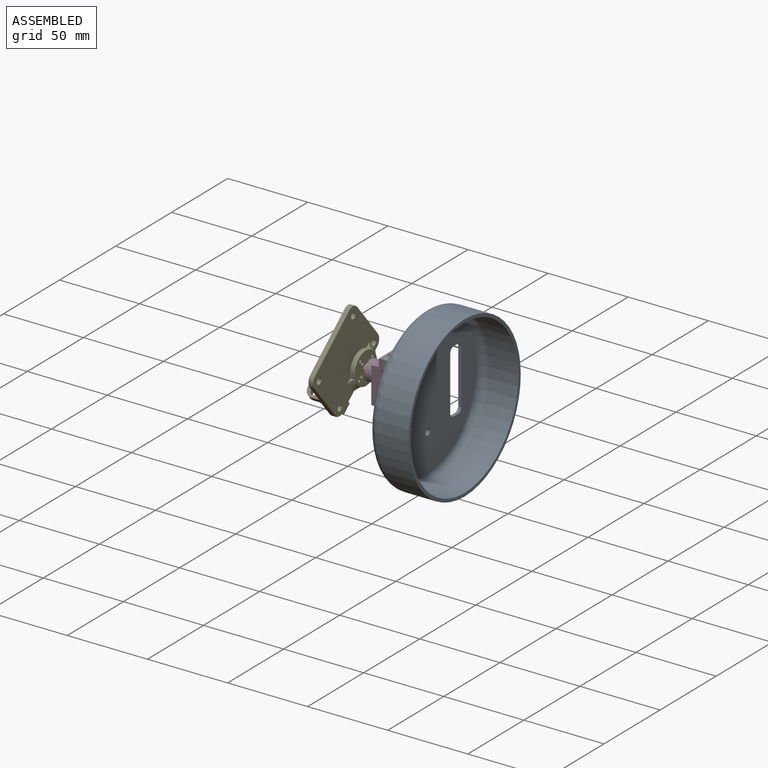
[diagram: assembled view]
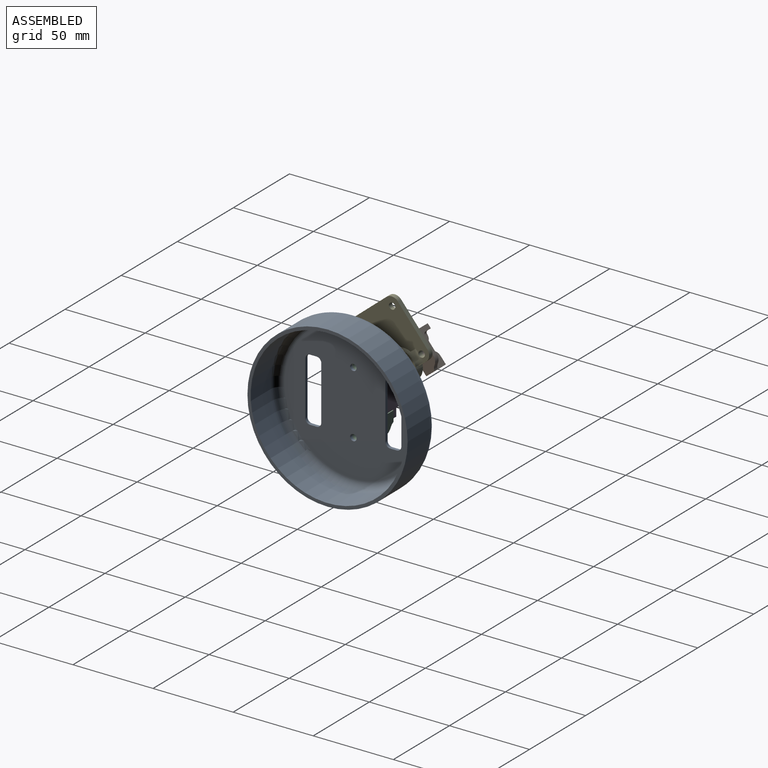
[diagram: assembled view, second angle]
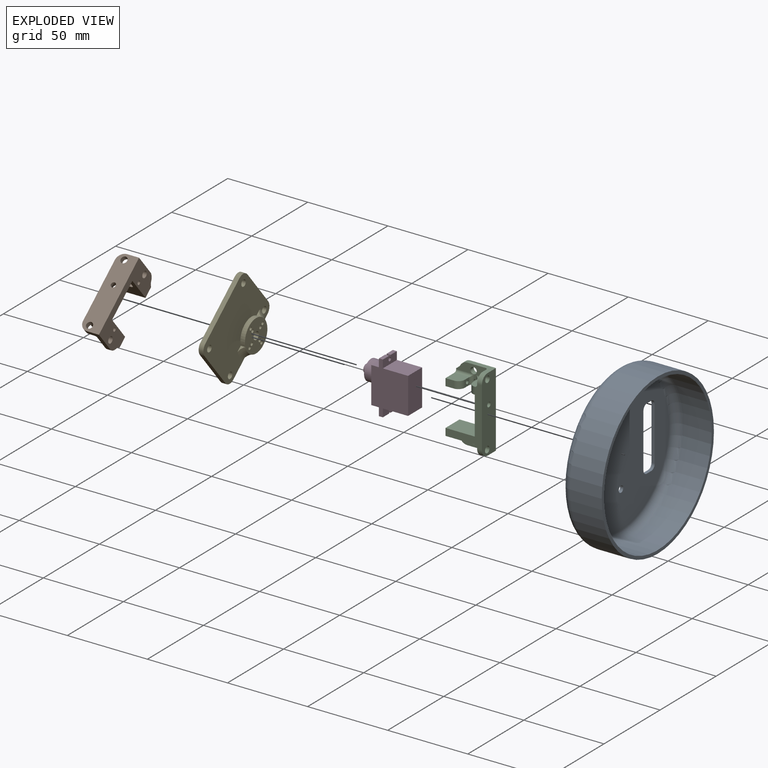
[diagram: exploded view]
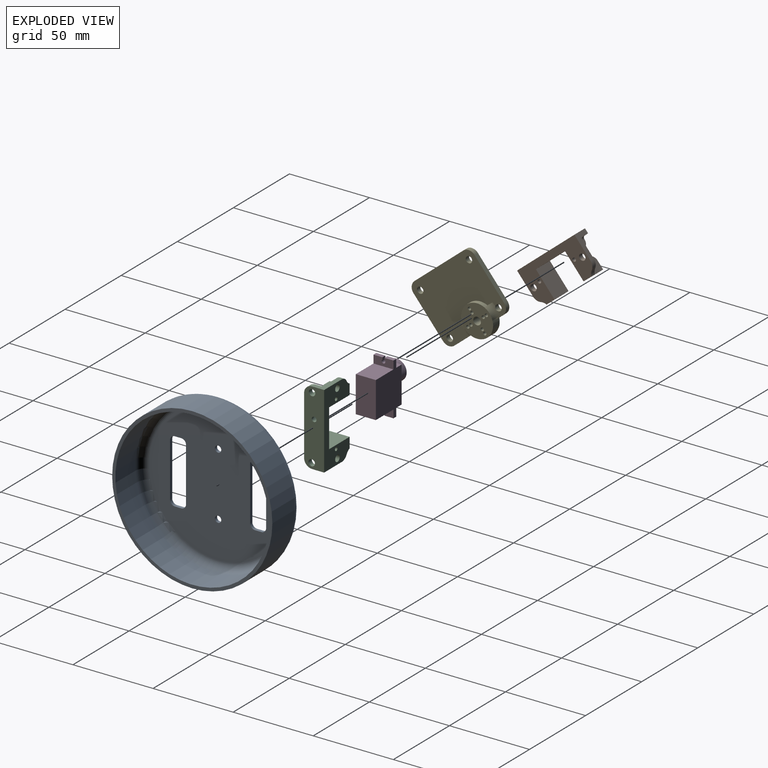
[diagram: exploded view, second angle]
ASSEMBLY  parts=5 mates=5
PART A: 25 faces, bbox 108.2x25x108.2 mm
  f0: plane 90x90mm, normal (0,1,0), area 5560mm2, adj f2,f4,f8,f9,f10,f11,f12,f13
  f1: plane 86x86mm, normal (0,-1,0), area 5007.1mm2, adj f2,f4,f7,f8,f9,f10,f11,f12
  f2: cylinder r=2mm len=4mm, axis (0,1,0), area 25.1mm2, adj f0,f1
  f3: cylinder r=50mm len=100mm, axis (0,1,0), area 6283.2mm2, adj f5,f20
  f4: cylinder r=2mm len=4mm, axis (0,1,0), area 25.1mm2, adj f0,f1
  f5: plane 100x100mm, normal (0,-1,0), area 615.8mm2, adj f3,f6
  f6: cylinder r=48mm len=96mm, axis (0,1,0), area 5428.7mm2, adj f5,f7
  f7: torus R=43mm, axis (0,-1,0), area 2279mm2, adj f1,f6
  f8: plane 33.6x2mm, normal (0,0,-1), area 67.2mm2, adj f0,f1,f21,f24
  f9: plane 4x2mm, normal (1,0,0), area 8mm2, adj f0,f1,f21,f22
  f10: plane 33.6x2mm, normal (0,0,1), area 67.2mm2, adj f0,f1,f22,f23
  f11: plane 4x2mm, normal (-1,0,0), area 8mm2, adj f0,f1,f23,f24
  f12: plane 4x2mm, normal (1,0,0), area 8mm2, adj f0,f1,f16,f19
  f13: plane 33.6x2mm, normal (0,0,1), area 67.2mm2, adj f0,f1,f18,f19
  f14: plane 4x2mm, normal (-1,0,0), area 8mm2, adj f0,f1,f17,f18
  f15: plane 33.6x2mm, normal (0,0,-1), area 67.2mm2, adj f0,f1,f16,f17
  f16: cylinder r=3mm len=3mm, axis (0,1,0), area 9.4mm2, adj f0,f1,f12,f15
  f17: cylinder r=3mm len=3mm, axis (0,-1,0), area 9.4mm2, adj f0,f1,f14,f15
  f18: cylinder r=3mm len=3mm, axis (0,1,0), area 9.4mm2, adj f0,f1,f13,f14
  f19: cylinder r=3mm len=3mm, axis (0,-1,0), area 9.4mm2, adj f0,f1,f12,f13
  f20: torus R=45mm, axis (0,-1,0), area 2377.7mm2, adj f0,f3
  f21: cylinder r=3mm len=3mm, axis (0,-1,0), area 9.4mm2, adj f0,f1,f8,f9
  f22: cylinder r=3mm len=3mm, axis (0,1,0), area 9.4mm2, adj f0,f1,f9,f10
  f23: cylinder r=3mm len=3mm, axis (0,-1,0), area 9.4mm2, adj f0,f1,f10,f11
  f24: cylinder r=3mm len=3mm, axis (0,1,0), area 9.4mm2, adj f0,f1,f8,f11
PART B: 57 faces, bbox 46.6x12.5x22.7 mm
  f0: plane 1.49x1mm, normal (0,1,0), area 1.3mm2, adj f11,f21,f34,f35
  f1: plane 8x4.06mm, normal (-1,0,0), area 28.6mm2, adj f29,f30,f32,f39,f41
  f2: plane 36.6x22.74mm, normal (0,1,0), area 241.7mm2, adj f7,f8,f9,f10,f14,f17,f30,f39
  f3: cylinder r=1.12mm len=11.99mm, axis (0,0,1), area 79.7mm2, adj f22,f53
  f4: cylinder r=1.12mm len=9.24mm, axis (0,0,1), area 65.3mm2, adj f28,f54
  f5: plane 9.3x8mm, normal (-1,0,0), area 70.5mm2, adj f6,f28,f31,f37,f42,f54
  f6: plane 5.24x4.5mm, normal (0,1,0), area 23.6mm2, adj f5,f11,f31,f54
  f7: plane 46.6x12.5mm, normal (0,0,-1), area 539.6mm2, adj f2,f12,f15,f18,f19,f20,f47,f49
  f8: plane 18.24x8mm, normal (1,0,0), area 145.9mm2, adj f2,f43,f44,f53
  f9: plane 18.24x12.5mm, normal (-1,0,0), area 228mm2, adj f2,f10,f12,f53
  f10: plane 23.6x12.5mm, normal (0,0,1), area 275.4mm2, adj f2,f9,f11,f12,f52
  f11: plane 18.24x12.5mm, normal (1,0,0), area 175.3mm2, adj f0,f6,f10,f12,f28,f29,f30,f31
  f12: plane 46.6x22.74mm, normal (0,-1,0), area 568.1mm2, adj f7,f9,f10,f11,f15,f18,f21,f22
  f13: plane 18.24x5.5mm, normal (0,1,0), area 73.8mm2, adj f15,f27,f43,f46,f50,f53,f55
  f14: plane 8x5.5mm, normal (0,0,1), area 26.1mm2, adj f2,f15,f20,f44,f46,f49
  f15: plane 15.74x7.5mm, normal (1,0,0), area 61.2mm2, adj f7,f12,f13,f14,f46,f49,f50
  f16: plane 18.24x8.34mm, normal (0,1,0), area 76.4mm2, adj f18,f21,f26,f32,f37,f38,f41,f42
  f17: plane 8x5.5mm, normal (0,0,1), area 26.1mm2, adj f2,f18,f19,f38,f39,f47
  f18: plane 15.74x7.5mm, normal (-1,0,0), area 61.2mm2, adj f7,f12,f16,f17,f38,f47,f48
  f19: cylinder r=2mm len=4mm, axis (0,0,1), area 37.7mm2, adj f7,f17
  f20: cylinder r=2mm len=4mm, axis (0,0,1), area 37.7mm2, adj f7,f14
  f21: cylinder r=1.12mm len=3mm, axis (0,-1,0), area 21.2mm2, adj f0,f12,f16,f33,f36
  f22: cylinder r=1.12mm len=10mm, axis (0,-1,0), area 65.6mm2, adj f3,f12,f23,f24,f25
  f23: plane 2.25x2.25mm, normal (0,-1,0), area 4mm2, adj f22
  f24: cylinder r=1.12mm len=0.02mm, axis (0,0,1), area 0mm2, adj f22
  f25: cylinder r=1.12mm len=0.02mm, axis (0,0,1), area 0mm2, adj f22
  f26: cylinder r=2mm len=4mm, axis (0,1,0), area 37.7mm2, adj f12,f16
  f27: cylinder r=2mm len=4mm, axis (0,1,0), area 37.7mm2, adj f12,f13
  f28: plane 4.5x3.54mm, normal (0,0,-1), area 11.8mm2, adj f4,f5,f11,f31,f35,f36,f37
  f29: plane 4.5x3.7mm, normal (0,0,1), area 15.9mm2, adj f1,f11,f30,f32,f33,f34
  f30: cylinder r=4mm len=4.5mm, axis (1,0,0), area 28.3mm2, adj f1,f2,f11,f29
  f31: cylinder r=4mm len=4.5mm, axis (-1,0,0), area 28.3mm2, adj f5,f6,f11,f28
  f32: cylinder r=2mm len=2.58mm, axis (1,0,0), area 4.9mm2, adj f1,f16,f29,f33,f41
  f33: bspline ~2.57x2.05mm, area 5.5mm2, adj f21,f29,f32,f34
  f34: cylinder r=2mm len=2mm, axis (1,0,0), area 3.9mm2, adj f0,f11,f29,f33
  f35: cylinder r=2mm len=2mm, axis (-1,0,0), area 4.7mm2, adj f0,f11,f28,f36
  f36: bspline ~2x2mm, area 4.8mm2, adj f21,f28,f35,f37
  f37: cylinder r=2mm len=2.84mm, axis (-1,0,0), area 5.7mm2, adj f5,f16,f28,f36,f42
  f38: cylinder r=1.5mm len=5.5mm, axis (1,0,0), area 13mm2, adj f16,f17,f18,f40
  f39: cylinder r=1.5mm len=8mm, axis (0,1,0), area 18.8mm2, adj f1,f2,f17,f40
  f40: sphere r=1.5mm, area 3.5mm2, adj f38,f39,f41
  f41: cylinder r=1.5mm len=6mm, axis (0,0,-1), area 11.4mm2, adj f1,f16,f32,f40
  f42: cylinder r=1.5mm len=11.24mm, axis (0,0,-1), area 23.8mm2, adj f5,f16,f37,f54
  f43: cylinder r=1.5mm len=18.24mm, axis (0,0,-1), area 43mm2, adj f8,f13,f45,f53
  f44: cylinder r=1.5mm len=8mm, axis (0,1,0), area 18.8mm2, adj f2,f8,f14,f45
  f45: sphere r=1.5mm, area 3.5mm2, adj f43,f44,f46
  f46: cylinder r=1.5mm len=5.5mm, axis (-1,0,0), area 13mm2, adj f13,f14,f15,f45
  f47: cylinder r=5mm len=5mm, axis (0,0,-1), area 23.6mm2, adj f2,f7,f17,f18
  f48: cylinder r=5mm len=4.43mm, axis (0,1,0), area 16.3mm2, adj f12,f16,f18,f56
  f49: cylinder r=5mm len=5mm, axis (0,0,-1), area 23.6mm2, adj f2,f7,f14,f15
  f50: cylinder r=5mm len=4.43mm, axis (0,-1,0), area 16.3mm2, adj f12,f13,f15,f55
  f51: cylinder r=1.5mm len=3mm, axis (0,0,1), area 14.1mm2, adj f7,f52
  f52: cone r=2.5mm half-angle=18.4deg, axis (0,0,1), area 39.7mm2, adj f10,f51
  f53: plane 12.5x6.5mm, normal (0,0,1), area 58.8mm2, adj f2,f3,f8,f9,f12,f13,f43,f55
  f54: plane 12.5x6.5mm, normal (0,0,1), area 58.8mm2, adj f4,f5,f6,f11,f12,f16,f42,f56
  f55: cylinder r=5mm len=3mm, axis (0,-1,0), area 10.6mm2, adj f12,f13,f50,f53
  f56: cylinder r=5mm len=3mm, axis (0,1,0), area 10.6mm2, adj f12,f16,f48,f54
PART C: same geometry as B
PART D: 28 faces, bbox 32.6x12.5x30.7 mm
  f0: plane 5.65x2.5mm, normal (-1,0,0), area 14.1mm2, adj f2,f12,f15,f27
  f1: plane 5.65x2.5mm, normal (1,0,0), area 14.1mm2, adj f3,f4,f11,f22
  f2: plane 12.5x5mm, normal (0,0,1), area 57.2mm2, adj f0,f10,f11,f12,f16,f25,f26,f27
  f3: plane 12.5x5mm, normal (0,0,1), area 57.2mm2, adj f1,f7,f11,f12,f17,f22,f23,f24
  f4: plane 12.5x5mm, normal (0,0,-1), area 57.2mm2, adj f1,f8,f11,f12,f17,f22,f23,f24
  f5: plane 6.25x6.25mm, normal (0,0,1), area 8.4mm2, adj f10,f12,f18
  f6: plane 6.25x6.25mm, normal (0,0,1), area 8.4mm2, adj f10,f11,f18
  f7: plane 12.5x4.76mm, normal (1,0,0), area 59.5mm2, adj f3,f11,f12,f13
  f8: plane 15.74x12.5mm, normal (1,0,0), area 196.7mm2, adj f4,f11,f12,f14
  f9: plane 15.74x12.5mm, normal (-1,0,0), area 196.7mm2, adj f11,f12,f14,f15
  f10: plane 12.5x4.76mm, normal (-1,0,0), area 59.5mm2, adj f2,f5,f6,f11,f12
  f11: plane 32.6x23mm, normal (0,-1,0), area 544.8mm2, adj f1,f2,f3,f4,f6,f7,f8,f9
  f12: plane 32.6x23mm, normal (0,1,0), area 544.8mm2, adj f0,f2,f3,f4,f5,f7,f8,f9
  f13: plane 16.35x12.5mm, normal (0,0,1), area 143mm2, adj f7,f11,f12,f18
  f14: plane 22.6x12.5mm, normal (0,0,-1), area 282.5mm2, adj f8,f9,f11,f12
  f15: plane 12.5x5mm, normal (0,0,-1), area 57.2mm2, adj f0,f9,f11,f12,f16,f25,f26,f27
  f16: plane 5.65x2.5mm, normal (-1,0,0), area 14.1mm2, adj f2,f11,f15,f25
  f17: plane 5.65x2.5mm, normal (1,0,0), area 14.1mm2, adj f3,f4,f12,f23
  f18: cylinder r=6.25mm len=12.5mm, axis (0,0,-1), area 176.7mm2, adj f5,f6,f13,f19
  f19: plane 12.5x12.5mm, normal (0,0,1), area 104.6mm2, adj f18,f20
  f20: cylinder r=2.4mm len=4.8mm, axis (0,0,-1), area 48.3mm2, adj f19,f21
  f21: plane 4.8x4.8mm, normal (0,0,1), area 18.1mm2, adj f20
  f22: plane 2.5x1.22mm, normal (0,1,0), area 3.1mm2, adj f1,f3,f4,f24
  f23: plane 2.5x1.22mm, normal (0,-1,0), area 3.1mm2, adj f3,f4,f17,f24
  f24: cylinder r=1.12mm len=2.5mm, axis (0,0,1), area 14.5mm2, adj f3,f4,f22,f23
  f25: plane 2.5x1.22mm, normal (0,1,0), area 3.1mm2, adj f2,f15,f16,f26
  f26: cylinder r=1.12mm len=2.5mm, axis (0,0,1), area 14.5mm2, adj f2,f15,f25,f27
  f27: plane 2.5x1.22mm, normal (0,-1,0), area 3.1mm2, adj f0,f2,f15,f26
PART E: 33 faces, bbox 49.7x8x44.4 mm
  f0: cylinder r=10mm len=18.33mm, axis (0,1,0), area 67.2mm2, adj f2,f5,f17,f21
  f1: cylinder r=10mm len=18.33mm, axis (0,1,0), area 133.7mm2, adj f3,f4,f17,f20,f21,f22,f23
  f2: plane 3.9x2.98mm, normal (0,0,-1), area 3.7mm2, adj f0,f7,f21
  f3: plane 3.9x2.98mm, normal (0,0,1), area 3.7mm2, adj f1,f7,f21
  f4: plane 3.9x2.98mm, normal (0,0,1), area 3.7mm2, adj f1,f6,f21
  f5: plane 3.9x2.98mm, normal (0,0,-1), area 3.7mm2, adj f0,f6,f21
  f6: torus R=14.58mm, axis (0,1,0), area 39mm2, adj f4,f5,f17,f21
  f7: torus R=14.58mm, axis (0,1,0), area 37.2mm2, adj f2,f3,f17,f18,f21
  f8: cylinder r=1mm len=5.9mm, axis (0,1,0), area 37.1mm2, adj f17,f20
  f9: cylinder r=2.4mm len=5.9mm, axis (0,1,0), area 89mm2, adj f17,f20
  f10: cylinder r=1mm len=5.9mm, axis (0,1,0), area 37.1mm2, adj f17,f20
  f11: cylinder r=1mm len=5.9mm, axis (0,1,0), area 37.1mm2, adj f17,f20
  f12: cylinder r=1mm len=5.9mm, axis (0,1,0), area 37.1mm2, adj f17,f20
  f13: cylinder r=1mm len=5.9mm, axis (0,1,0), area 37.1mm2, adj f17,f20
  f14: cylinder r=1mm len=5.9mm, axis (0,1,0), area 37.1mm2, adj f17,f20
  f15: cylinder r=1mm len=5.9mm, axis (0,1,0), area 37.1mm2, adj f17,f20
  f16: cylinder r=1mm len=5.9mm, axis (0,1,0), area 37.1mm2, adj f17,f20
  f17: plane 20x20mm, normal (0,-1,0), area 270.9mm2, adj f0,f1,f6,f7,f8,f9,f10,f11
  f18: cylinder r=2mm len=4mm, axis (0,-1,0), area 38.2mm2, adj f7,f20,f21
  f19: cylinder r=2mm len=4mm, axis (0,-1,0), area 37.7mm2, adj f20,f21
  f20: plane 49.6x44.36mm, normal (0,1,0), area 1881.7mm2, adj f1,f8,f9,f10,f11,f12,f13,f14
  f21: plane 49.6x38.83mm, normal (0,-1,0), area 1554mm2, adj f0,f1,f2,f3,f4,f5,f6,f7
  f22: plane 5.81x3mm, normal (0,0,1), area 17.4mm2, adj f1,f20,f21,f32
  f23: plane 15.91x3mm, normal (0,0,1), area 47.7mm2, adj f1,f20,f21,f29
  f24: plane 28.83x3mm, normal (1,0,0), area 86.5mm2, adj f20,f21,f29,f30
  f25: plane 39.6x3mm, normal (0,0,-1), area 118.8mm2, adj f20,f21,f30,f31
  f26: cylinder r=2mm len=4mm, axis (0,1,0), area 37.7mm2, adj f20,f21
  f27: cylinder r=2mm len=4mm, axis (0,1,0), area 37.7mm2, adj f20,f21
  f28: plane 28.83x3mm, normal (-1,0,0), area 86.5mm2, adj f20,f21,f31,f32
  f29: cylinder r=5mm len=5mm, axis (0,-1,0), area 23.6mm2, adj f20,f21,f23,f24
  f30: cylinder r=5mm len=5mm, axis (0,1,0), area 23.6mm2, adj f20,f21,f24,f25
  f31: cylinder r=5mm len=5mm, axis (0,-1,0), area 23.6mm2, adj f20,f21,f25,f28
  f32: cylinder r=5mm len=5mm, axis (0,1,0), area 23.6mm2, adj f20,f21,f22,f28
PLACE A rot(axis=(0.58,-0.58,0.58),120deg) t=(-19.53,6.87,31.82)mm
PLACE B rot(axis=(-0.69,0.69,0.25),152.2deg) t=(-53.13,-31.23,-13.26)mm
PLACE C rot(axis=(0.71,0,-0.71),180deg) t=(-7,0.22,-31.82)mm
PLACE D rot(axis=(0.71,0,-0.71),180deg) t=(-7,0.22,-31.82)mm
PLACE E rot(axis=(-0.69,0.69,0.25),152.2deg) t=(-37.98,-49.67,8.9)mm
MATE fastened C.f20 <-> A.f4  axis (1,0,0) through (-2,0,-19.8)mm
MATE fastened D.f24 <-> C.f3  axis (1,0,0) through (-24.74,1.5,-14.12)mm
MATE revolute B.f26 <-> E.f18  axis (1,0,0) through (-45.6,12.84,14.49)mm
MATE revolute E.f6 <-> D.f18  axis (1,0,0) through (-39.7,1.5,5.05)mm
MATE revolute D.f26 <-> C.f4  axis (1,0,0) through (-24.74,1.5,14.13)mm
